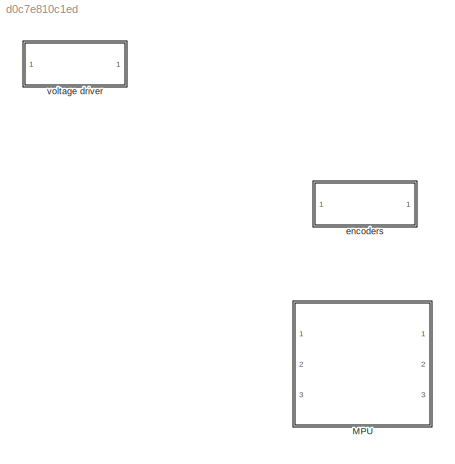
MODEL slx_d0c7e810c1ed
KIND model
CONFIG AbsTol = auto
CONFIG EnableMultiTasking = off
CONFIG FixedStep = auto
CONFIG MaxStep = auto
CONFIG MinStep = auto
CONFIG RelTol = 1e-3
CONFIG SampleTimeConstraint = Unconstrained
CONFIG SolverName = VariableStepAuto
CONFIG StartTime = 0.0
CONFIG StopTime = 10.0
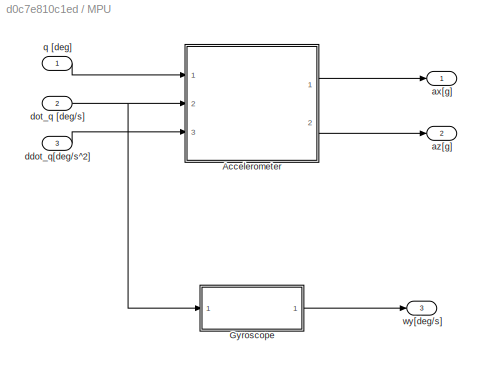
BLOCK [SubSystem] MPU
  Ports = [3, 3]
  RequestExecContextInheritance = off
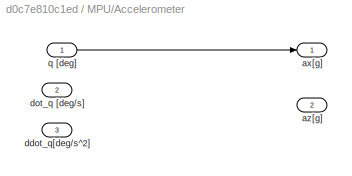
BLOCK [SubSystem] MPU/Accelerometer
  Ports = [3, 2]
  RequestExecContextInheritance = off
BLOCK [Outport] MPU/Accelerometer/ax[g]
BLOCK [Outport] MPU/Accelerometer/az[g]
  Port = 2
BLOCK [Inport] MPU/Accelerometer/ddot_q[deg//s^2]
  Port = 3
BLOCK [Inport] MPU/Accelerometer/dot_q [deg//s]
  Port = 2
BLOCK [Inport] MPU/Accelerometer/q [deg]
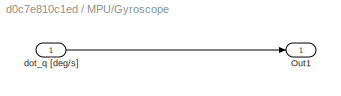
BLOCK [SubSystem] MPU/Gyroscope
  Ports = [1, 1]
  RequestExecContextInheritance = off
BLOCK [Outport] MPU/Gyroscope/Out1
BLOCK [Inport] MPU/Gyroscope/dot_q [deg//s]
BLOCK [Outport] MPU/ax[g]
BLOCK [Outport] MPU/az[g]
  Port = 2
BLOCK [Inport] MPU/ddot_q[deg//s^2]
  Port = 3
BLOCK [Inport] MPU/dot_q [deg//s]
  Port = 2
BLOCK [Inport] MPU/q [deg]
BLOCK [Outport] MPU/wy[deg//s]
  Port = 3
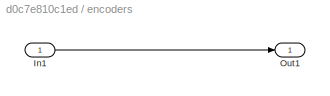
BLOCK [SubSystem] encoders
  Ports = [1, 1]
  RequestExecContextInheritance = off
BLOCK [Inport] encoders/In1
BLOCK [Outport] encoders/Out1
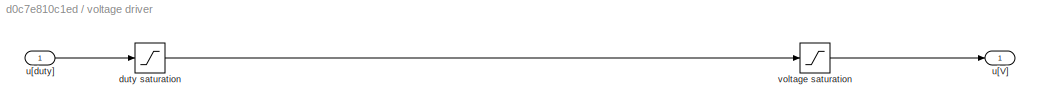
BLOCK [SubSystem] voltage driver
  Ports = [1, 1]
  RequestExecContextInheritance = off
BLOCK [Saturate] voltage driver/duty saturation
BLOCK [Outport] voltage driver/u[V]
BLOCK [Inport] voltage driver/u[duty]
BLOCK [Saturate] voltage driver/voltage saturation
LINE MPU/Accelerometer/q [deg]:1 -> MPU/Accelerometer/ax[g]:1
LINE MPU/Accelerometer:1 -> MPU/ax[g]:1
LINE MPU/Accelerometer:2 -> MPU/az[g]:1
LINE MPU/Gyroscope/dot_q [deg//s]:1 -> MPU/Gyroscope/Out1:1
LINE MPU/Gyroscope:1 -> MPU/wy[deg//s]:1
LINE MPU/ddot_q[deg//s^2]:1 -> MPU/Accelerometer:3
NET MPU/dot_q [deg//s]:1 -> MPU/Accelerometer:2, MPU/Gyroscope:1
LINE MPU/q [deg]:1 -> MPU/Accelerometer:1
LINE encoders/In1:1 -> encoders/Out1:1
LINE voltage driver/duty saturation:1 -> voltage driver/voltage saturation:1
LINE voltage driver/u[duty]:1 -> voltage driver/duty saturation:1
LINE voltage driver/voltage saturation:1 -> voltage driver/u[V]:1
note: NET lines group one-source signal fan-out (src -> all destinations, sorted); 1:1 wires keep LINE
